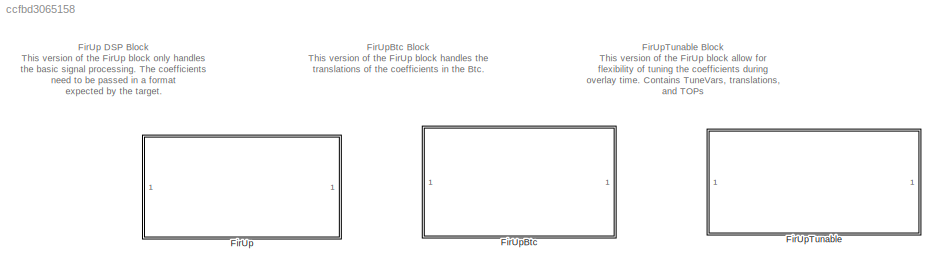
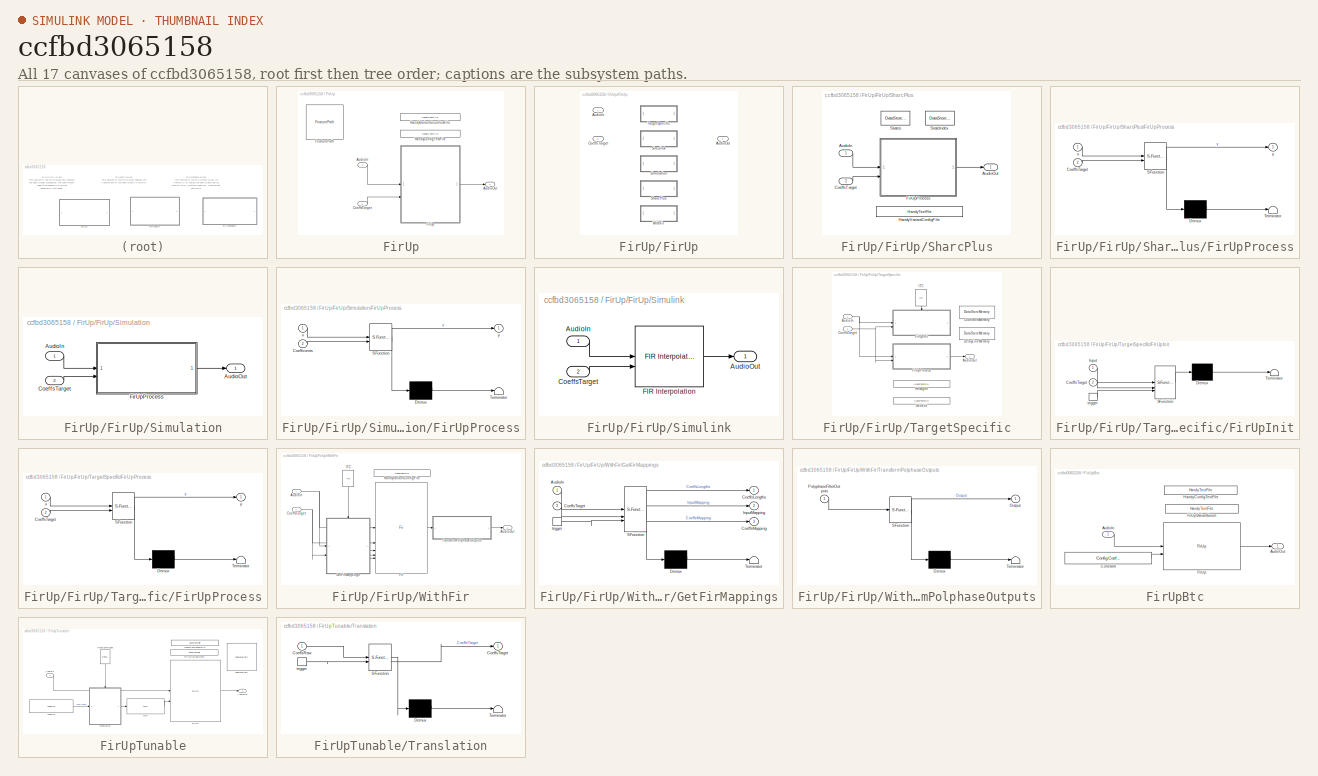
[diagram: thumbnail index - all 17 canvases of the model, root first then tree order]
MODEL slx_ccfbd3065158
KIND library
CONFIG AbsTol = auto
CONFIG EnableMultiTasking = off
CONFIG FixedStep = auto
CONFIG MaxStep = auto
CONFIG MinStep = auto
CONFIG RelTol = 1e-3
CONFIG SampleTimeConstraint = Unconstrained
CONFIG SolverName = VariableStepAuto
CONFIG StartTime = 0.0
CONFIG StopTime = 10.0
BLOCK [SubSystem] FirUp
BLOCK [Inport] FirUp/AudioIn
BLOCK [Outport] FirUp/AudioOut
BLOCK [Inport] FirUp/CoeffsTarget
  Port = 2
BLOCK [Reference] FirUp/FeaturePath  REF=FeaturePath/FeaturePath
  SourceBlock = FeaturePath/FeaturePath
  SourceProductName = Bose Talaria
  SourceType = Talaria Feature Path
BLOCK [SubSystem] FirUp/FirUp
  Variant = on
BLOCK [Inport] FirUp/FirUp/AudioIn
BLOCK [Outport] FirUp/FirUp/AudioOut
BLOCK [Inport] FirUp/FirUp/CoeffsTarget
  Port = 2
BLOCK [SubSystem] FirUp/FirUp/SharcPlus
  VariantControl = Config.Variant.StartsWith('SharcPlus')
BLOCK [Inport] FirUp/FirUp/SharcPlus/AudioIn
BLOCK [Outport] FirUp/FirUp/SharcPlus/AudioOut
BLOCK [Inport] FirUp/FirUp/SharcPlus/CoeffsTarget
  Port = 2
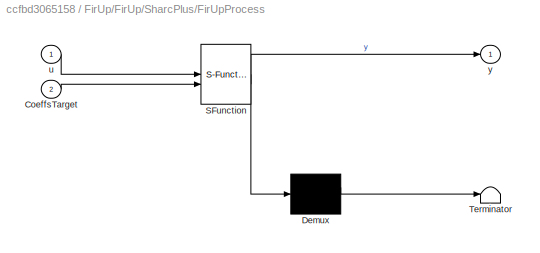
BLOCK [SubSystem] FirUp/FirUp/SharcPlus/FirUpProcess
  ErrorFcn = Stateflow.Translate.translate
  LibrarySourceBlock = simulink/User-Defined\nFunctions/MATLAB Function
  PermitHierarchicalResolution = ExplicitOnly
  SFBlockType = MATLAB Function
  TreatAsAtomicUnit = on
BLOCK [Demux] FirUp/FirUp/SharcPlus/FirUpProcess/ Demux 
  Outputs = 1
BLOCK [S-Function] FirUp/FirUp/SharcPlus/FirUpProcess/ SFunction 
  EnableBusSupport = off
  FunctionName = sf_sfun
  Parameters = UpFactor
  PortCounts = [2 2]
  SFcnIsStateOwnerBlock = off
  SFunctionDeploymentMode = off
  Tag = Stateflow S-Function 2
BLOCK [Terminator] FirUp/FirUp/SharcPlus/FirUpProcess/ Terminator 
BLOCK [Inport] FirUp/FirUp/SharcPlus/FirUpProcess/CoeffsTarget
  Port = 2
BLOCK [Inport] FirUp/FirUp/SharcPlus/FirUpProcess/u
BLOCK [Outport] FirUp/FirUp/SharcPlus/FirUpProcess/y
BLOCK [Reference] FirUp/FirUp/SharcPlus/HandyVariantConfigFile  REF=HandyTextFile/HandyTextFile
  SourceBlock = HandyTextFile/HandyTextFile
  SourceProductName = Bose Talaria
  SourceType = Talaria Handy Text File
BLOCK [DataStoreMemory] FirUp/FirUp/SharcPlus/StateIndex
  DataStoreName = StateIndex
  InitialValue = Config.VariantObj.DsmStateIndexInitValue
  OutDataTypeStr = int32
  ShowAdditionalParam = off
  SignalType = real
BLOCK [DataStoreMemory] FirUp/FirUp/SharcPlus/States
  DataStoreName = States
  InitialValue = Config.VariantObj.DsmStatesInitValue
  OutDataTypeStr = single
  ShowAdditionalParam = off
  SignalType = real
BLOCK [SubSystem] FirUp/FirUp/Simulation
  VariantControl = Config.Variant.StartsWith('Simulation')
BLOCK [Inport] FirUp/FirUp/Simulation/AudioIn
BLOCK [Outport] FirUp/FirUp/Simulation/AudioOut
BLOCK [Inport] FirUp/FirUp/Simulation/CoeffsTarget
  Port = 2
BLOCK [SubSystem] FirUp/FirUp/Simulation/FirUpProcess
  ErrorFcn = Stateflow.Translate.translate
  LibrarySourceBlock = simulink/User-Defined\nFunctions/MATLAB Function
  PermitHierarchicalResolution = ExplicitOnly
  SFBlockType = MATLAB Function
  TreatAsAtomicUnit = on
BLOCK [Demux] FirUp/FirUp/Simulation/FirUpProcess/ Demux 
  Outputs = 1
BLOCK [S-Function] FirUp/FirUp/Simulation/FirUpProcess/ SFunction 
  EnableBusSupport = off
  FunctionName = sf_sfun
  Parameters = UpFactor
  PortCounts = [2 2]
  SFcnIsStateOwnerBlock = off
  SFunctionDeploymentMode = off
  Tag = Stateflow S-Function 4
BLOCK [Terminator] FirUp/FirUp/Simulation/FirUpProcess/ Terminator 
BLOCK [Inport] FirUp/FirUp/Simulation/FirUpProcess/Coefficients
  Port = 2
BLOCK [Inport] FirUp/FirUp/Simulation/FirUpProcess/u
BLOCK [Outport] FirUp/FirUp/Simulation/FirUpProcess/y
BLOCK [SubSystem] FirUp/FirUp/Simulink
  VariantControl = (default)
BLOCK [Inport] FirUp/FirUp/Simulink/AudioIn
  OutDataTypeStr = single
BLOCK [Outport] FirUp/FirUp/Simulink/AudioOut
  OutDataTypeStr = single
BLOCK [Inport] FirUp/FirUp/Simulink/CoeffsTarget
  OutDataTypeStr = single
  Port = 2
BLOCK [Reference] FirUp/FirUp/Simulink/FIR Interpolation  REF=dspmlti4/FIR
Interpolation
  SourceBlock = dspmlti4/FIR\nInterpolation
  SourceType = FIR Interpolation
  UserDataPersistent = on
BLOCK [SubSystem] FirUp/FirUp/TargetSpecific
  VariantControl = Config.Variant.StartsWith('Generic') || Config.Variant.StartsWith('Hexagon')
BLOCK [Inport] FirUp/FirUp/TargetSpecific/AudioIn
BLOCK [Outport] FirUp/FirUp/TargetSpecific/AudioOut
BLOCK [DataStoreMemory] FirUp/FirUp/TargetSpecific/CodeWorkMemory
  DataStoreName = CodeWorkMemory
  InitialValue = Config.VariantObj.CodeWorkMemoryInitValue
  OutDataTypeStr = uint32
  ShowAdditionalParam = off
  SignalType = real
  WriteAfterWriteMsg = warning
BLOCK [Inport] FirUp/FirUp/TargetSpecific/CoeffsTarget
  Port = 2
BLOCK [DataStoreMemory] FirUp/FirUp/TargetSpecific/DelayLineMemory
  DataStoreName = DelayLineMemory
  InitialValue = Config.VariantObj.DelayLineMemoryInitValue
  OutDataTypeStr = single
  ShowAdditionalParam = off
  SignalType = real
  WriteAfterWriteMsg = warning
BLOCK [SubSystem] FirUp/FirUp/TargetSpecific/FirUpInit
  ErrorFcn = Stateflow.Translate.translate
  LibrarySourceBlock = simulink/User-Defined\nFunctions/MATLAB Function
  PermitHierarchicalResolution = ExplicitOnly
  SFBlockType = MATLAB Function
  TreatAsAtomicUnit = on
BLOCK [Demux] FirUp/FirUp/TargetSpecific/FirUpInit/ Demux 
  Outputs = 1
BLOCK [S-Function] FirUp/FirUp/TargetSpecific/FirUpInit/ SFunction 
  EnableBusSupport = off
  FunctionName = sf_sfun
  Parameters = UpFactor,VariantUint8
  PortCounts = [3 1]
  SFcnIsStateOwnerBlock = off
  SFunctionDeploymentMode = off
  Tag = Stateflow S-Function 3
BLOCK [Terminator] FirUp/FirUp/TargetSpecific/FirUpInit/ Terminator 
BLOCK [Inport] FirUp/FirUp/TargetSpecific/FirUpInit/CoeffsTarget
  Port = 2
BLOCK [Inport] FirUp/FirUp/TargetSpecific/FirUpInit/Input
BLOCK [TriggerPort] FirUp/FirUp/TargetSpecific/FirUpInit/trigger
  ShowOutputPort = on
  StatesWhenEnabling = held
  TriggerType = function-call
  VariantControl = (inherit)
BLOCK [SubSystem] FirUp/FirUp/TargetSpecific/FirUpProcess
  ErrorFcn = Stateflow.Translate.translate
  LibrarySourceBlock = simulink/User-Defined\nFunctions/MATLAB Function
  PermitHierarchicalResolution = ExplicitOnly
  SFBlockType = MATLAB Function
  TreatAsAtomicUnit = on
BLOCK [Demux] FirUp/FirUp/TargetSpecific/FirUpProcess/ Demux 
  Outputs = 1
BLOCK [S-Function] FirUp/FirUp/TargetSpecific/FirUpProcess/ SFunction 
  EnableBusSupport = off
  FunctionName = sf_sfun
  Parameters = UpFactor,VariantUint8
  PortCounts = [2 2]
  SFcnIsStateOwnerBlock = off
  SFunctionDeploymentMode = off
  Tag = Stateflow S-Function 1
BLOCK [Terminator] FirUp/FirUp/TargetSpecific/FirUpProcess/ Terminator 
BLOCK [Inport] FirUp/FirUp/TargetSpecific/FirUpProcess/CoeffsTarget
  Port = 2
BLOCK [Inport] FirUp/FirUp/TargetSpecific/FirUpProcess/u
BLOCK [Outport] FirUp/FirUp/TargetSpecific/FirUpProcess/y
BLOCK [Reference] FirUp/FirUp/TargetSpecific/Generic  REF=HandyTextFile/HandyTextFile
  SourceBlock = HandyTextFile/HandyTextFile
  SourceProductName = Bose Talaria
  SourceType = Talaria Handy Text File
BLOCK [Reference] FirUp/FirUp/TargetSpecific/Hexagon  REF=HandyTextFile/HandyTextFile
  SourceBlock = HandyTextFile/HandyTextFile
  SourceProductName = Bose Talaria
  SourceType = Talaria Handy Text File
BLOCK [Reference] FirUp/FirUp/TargetSpecific/ITC  REF=ITC/ITC
  NameLocation = right
  SourceBlock = ITC/ITC
  SourceProductName = Bose Talaria
  SourceType = Talaria Initialization Trigger Control
BLOCK [SubSystem] FirUp/FirUp/WithFir
  VariantControl = Config.Variant.StartsWith('WithFir')
BLOCK [Inport] FirUp/FirUp/WithFir/AudioIn
BLOCK [Outport] FirUp/FirUp/WithFir/AudioOut
BLOCK [Inport] FirUp/FirUp/WithFir/CoeffsTarget
  Port = 2
BLOCK [Reference] FirUp/FirUp/WithFir/Fir  REF=FirGeneric/Fir
  SourceBlock = FirGeneric/Fir
  SourceProductName = Bose Blocklib
  SourceType = Blocklib Fir
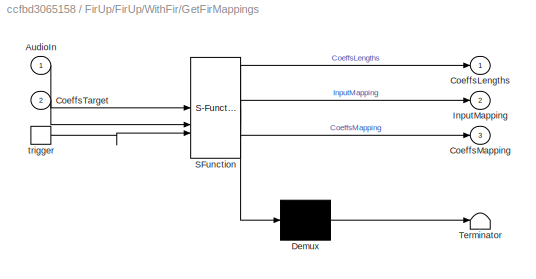
BLOCK [SubSystem] FirUp/FirUp/WithFir/GetFirMappings
  ErrorFcn = Stateflow.Translate.translate
  LibrarySourceBlock = simulink/User-Defined\nFunctions/MATLAB Function
  PermitHierarchicalResolution = ExplicitOnly
  SFBlockType = MATLAB Function
  TreatAsAtomicUnit = on
BLOCK [Demux] FirUp/FirUp/WithFir/GetFirMappings/ Demux 
  Outputs = 1
BLOCK [S-Function] FirUp/FirUp/WithFir/GetFirMappings/ SFunction 
  EnableBusSupport = off
  FunctionName = sf_sfun
  Parameters = UpFactor
  PortCounts = [3 4]
  SFcnIsStateOwnerBlock = off
  SFunctionDeploymentMode = off
  Tag = Stateflow S-Function 5
BLOCK [Terminator] FirUp/FirUp/WithFir/GetFirMappings/ Terminator 
BLOCK [Inport] FirUp/FirUp/WithFir/GetFirMappings/AudioIn
BLOCK [Outport] FirUp/FirUp/WithFir/GetFirMappings/CoeffsLengths
BLOCK [Outport] FirUp/FirUp/WithFir/GetFirMappings/CoeffsMapping
  Port = 3
BLOCK [Inport] FirUp/FirUp/WithFir/GetFirMappings/CoeffsTarget
  Port = 2
BLOCK [Outport] FirUp/FirUp/WithFir/GetFirMappings/InputMapping
  Port = 2
BLOCK [TriggerPort] FirUp/FirUp/WithFir/GetFirMappings/trigger
  ShowOutputPort = on
  StatesWhenEnabling = held
  TriggerType = function-call
  VariantControl = (inherit)
BLOCK [Reference] FirUp/FirUp/WithFir/HandyVariantConfigFile  REF=HandyTextFile/HandyTextFile
  SourceBlock = HandyTextFile/HandyTextFile
  SourceProductName = Bose Talaria
  SourceType = Talaria Handy Text File
BLOCK [Reference] FirUp/FirUp/WithFir/ITC  REF=ITC/ITC
  NameLocation = right
  SourceBlock = ITC/ITC
  SourceProductName = Bose Talaria
  SourceType = Talaria Initialization Trigger Control
BLOCK [SubSystem] FirUp/FirUp/WithFir/TransformPolphaseOutputs
  ErrorFcn = Stateflow.Translate.translate
  LibrarySourceBlock = simulink/User-Defined\nFunctions/MATLAB Function
  PermitHierarchicalResolution = ExplicitOnly
  SFBlockType = MATLAB Function
  TreatAsAtomicUnit = on
BLOCK [Demux] FirUp/FirUp/WithFir/TransformPolphaseOutputs/ Demux 
  Outputs = 1
BLOCK [S-Function] FirUp/FirUp/WithFir/TransformPolphaseOutputs/ SFunction 
  EnableBusSupport = off
  FunctionName = sf_sfun
  Parameters = UpFactor
  PortCounts = [1 2]
  SFcnIsStateOwnerBlock = off
  SFunctionDeploymentMode = off
  Tag = Stateflow S-Function 6
BLOCK [Terminator] FirUp/FirUp/WithFir/TransformPolphaseOutputs/ Terminator 
BLOCK [Outport] FirUp/FirUp/WithFir/TransformPolphaseOutputs/Output
BLOCK [Inport] FirUp/FirUp/WithFir/TransformPolphaseOutputs/PolyphaseFilterOutputs
BLOCK [Reference] FirUp/HandyConfigTextFile  REF=HandyTextFile/HandyTextFile
  SourceBlock = HandyTextFile/HandyTextFile
  SourceProductName = Bose Talaria
  SourceType = Talaria Handy Text File
BLOCK [Reference] FirUp/HandyVariantEnumTextFile  REF=HandyTextFile/HandyTextFile
  SourceBlock = HandyTextFile/HandyTextFile
  SourceProductName = Bose Talaria
  SourceType = Talaria Handy Text File
BLOCK [SubSystem] FirUpBtc
BLOCK [Inport] FirUpBtc/AudioIn
BLOCK [Outport] FirUpBtc/AudioOut
BLOCK [Constant] FirUpBtc/Constant
  OutDataTypeStr = single
  Value = Config.CoeffsTarget
  VectorParams1D = off
BLOCK [Reference] FirUpBtc/FirUp  REF=$bdroot/FirUp
  SourceBlock = $bdroot/FirUp
  SourceType = Blocklib FirUp
BLOCK [Reference] FirUpBtc/FirUpVariantEnum  REF=HandyTextFile/HandyTextFile
  SourceBlock = HandyTextFile/HandyTextFile
  SourceProductName = Bose Talaria
  SourceType = Talaria Handy Text File
BLOCK [Reference] FirUpBtc/HandyConfigTextFile  REF=HandyTextFile/HandyTextFile
  SourceBlock = HandyTextFile/HandyTextFile
  SourceProductName = Bose Talaria
  SourceType = Talaria Handy Text File
BLOCK [SubSystem] FirUpTunable
BLOCK [Inport] FirUpTunable/AudioIn
BLOCK [Outport] FirUpTunable/AudioOut
BLOCK [Reference] FirUpTunable/FeaturePath  REF=FeaturePath/FeaturePath
  SourceBlock = FeaturePath/FeaturePath
  SourceProductName = Bose Talaria
  SourceType = Talaria Feature Path
BLOCK [Reference] FirUpTunable/FirUp  REF=$bdroot/FirUp
  SourceBlock = $bdroot/FirUp
  SourceType = Blocklib FirUp
BLOCK [Reference] FirUpTunable/FirUpVariantEnum  REF=HandyTextFile/HandyTextFile
  SourceBlock = HandyTextFile/HandyTextFile
  SourceProductName = Bose Talaria
  SourceType = Talaria Handy Text File
BLOCK [Reference] FirUpTunable/HandyConfigTextFile  REF=HandyTextFile/HandyTextFile
  SourceBlock = HandyTextFile/HandyTextFile
  SourceProductName = Bose Talaria
  SourceType = Talaria Handy Text File
BLOCK [Reference] FirUpTunable/TOP  REF=TOP/TOP
  SourceBlock = TOP/TOP
  SourceProductName = Bose Talaria
  SourceType = Talaria Target Overlay Parameter
BLOCK [Reference] FirUpTunable/TranslateTrigger  REF=TuneVar/TranslateTrigger
  NameLocation = right
  SourceBlock = TuneVar/TranslateTrigger
  SourceProductName = Bose Talaria
  SourceType = Talaria Translate Trigger
BLOCK [SubSystem] FirUpTunable/Translation
  ErrorFcn = Stateflow.Translate.translate
  PermitHierarchicalResolution = ExplicitOnly
  SFBlockType = MATLAB Function
  TreatAsAtomicUnit = on
BLOCK [Demux] FirUpTunable/Translation/ Demux 
  Outputs = 1
BLOCK [S-Function] FirUpTunable/Translation/ SFunction 
  EnableBusSupport = off
  FunctionName = sf_sfun
  Parameters = UpFactor,VariantStr,WithFirVariantStr
  PortCounts = [2 2]
  SFcnIsStateOwnerBlock = off
  SFunctionDeploymentMode = off
  Tag = Stateflow S-Function 8
BLOCK [Terminator] FirUpTunable/Translation/ Terminator 
BLOCK [Inport] FirUpTunable/Translation/CoeffsRaw
BLOCK [Outport] FirUpTunable/Translation/CoeffsTarget
  VectorParamsAs1DForOutWhenUnconnected = off
BLOCK [TriggerPort] FirUpTunable/Translation/trigger
  ShowOutputPort = on
  StatesWhenEnabling = held
  TriggerType = function-call
  VariantControl = Variant
BLOCK [Reference] FirUpTunable/TuneVar  REF=TuneVar/TuneVar
  SourceBlock = TuneVar/TuneVar
  SourceProductName = Bose Talaria
  SourceType = Talaria Tune Variable
ANNOTATION (root): FirUp DSP Block This version of the FirUp block only handles the basic signal processing. The coefficients need to be passed in a format expected by the target.
ANNOTATION (root): FirUpBtc Block This version of the FirUp block handles the translations of the coefficients in the Btc.
ANNOTATION (root): FirUpTunable Block This version of the FirUp block allow for flexibility of tuning the coefficients during overlay time. Contains TuneVars, translations, and TOPs
LINE FirUp/AudioIn:1 -> FirUp/FirUp:1
LINE FirUp/CoeffsTarget:1 -> FirUp/FirUp:2
LINE FirUp/FirUp/SharcPlus/AudioIn:1 -> FirUp/FirUp/SharcPlus/FirUpProcess:1
LINE FirUp/FirUp/SharcPlus/CoeffsTarget:1 -> FirUp/FirUp/SharcPlus/FirUpProcess:2
LINE FirUp/FirUp/SharcPlus/FirUpProcess:1 -> FirUp/FirUp/SharcPlus/AudioOut:1
LINE FirUp/FirUp/Simulation/AudioIn:1 -> FirUp/FirUp/Simulation/FirUpProcess:1
LINE FirUp/FirUp/Simulation/CoeffsTarget:1 -> FirUp/FirUp/Simulation/FirUpProcess:2
LINE FirUp/FirUp/Simulation/FirUpProcess:1 -> FirUp/FirUp/Simulation/AudioOut:1
LINE FirUp/FirUp/Simulink/AudioIn:1 -> FirUp/FirUp/Simulink/FIR Interpolation:1
LINE FirUp/FirUp/Simulink/CoeffsTarget:1 -> FirUp/FirUp/Simulink/FIR Interpolation:2
LINE FirUp/FirUp/Simulink/FIR Interpolation:1 -> FirUp/FirUp/Simulink/AudioOut:1
NET FirUp/FirUp/TargetSpecific/AudioIn:1 -> FirUp/FirUp/TargetSpecific/FirUpInit:1, FirUp/FirUp/TargetSpecific/FirUpProcess:1
NET FirUp/FirUp/TargetSpecific/CoeffsTarget:1 -> FirUp/FirUp/TargetSpecific/FirUpInit:2, FirUp/FirUp/TargetSpecific/FirUpProcess:2
LINE FirUp/FirUp/TargetSpecific/FirUpProcess:1 -> FirUp/FirUp/TargetSpecific/AudioOut:1
LINE FirUp/FirUp/TargetSpecific/ITC:1 -> FirUp/FirUp/TargetSpecific/FirUpInit:trigger
NET FirUp/FirUp/WithFir/AudioIn:1 -> FirUp/FirUp/WithFir/Fir:1, FirUp/FirUp/WithFir/GetFirMappings:1
NET FirUp/FirUp/WithFir/CoeffsTarget:1 -> FirUp/FirUp/WithFir/Fir:2, FirUp/FirUp/WithFir/GetFirMappings:2
LINE FirUp/FirUp/WithFir/Fir:1 -> FirUp/FirUp/WithFir/TransformPolphaseOutputs:1
LINE FirUp/FirUp/WithFir/GetFirMappings:1 -> FirUp/FirUp/WithFir/Fir:3
LINE FirUp/FirUp/WithFir/GetFirMappings:2 -> FirUp/FirUp/WithFir/Fir:4
LINE FirUp/FirUp/WithFir/GetFirMappings:3 -> FirUp/FirUp/WithFir/Fir:5
LINE FirUp/FirUp/WithFir/ITC:1 -> FirUp/FirUp/WithFir/GetFirMappings:trigger
LINE FirUp/FirUp/WithFir/TransformPolphaseOutputs:1 -> FirUp/FirUp/WithFir/AudioOut:1
LINE FirUp/FirUp:1 -> FirUp/AudioOut:1
LINE FirUpBtc/AudioIn:1 -> FirUpBtc/FirUp:1
LINE FirUpBtc/Constant:1 -> FirUpBtc/FirUp:2
LINE FirUpBtc/FirUp:1 -> FirUpBtc/AudioOut:1
LINE FirUpTunable/AudioIn:1 -> FirUpTunable/FirUp:1
LINE FirUpTunable/FirUp:1 -> FirUpTunable/AudioOut:1
LINE FirUpTunable/TOP:1 -> FirUpTunable/FirUp:2
LINE FirUpTunable/TranslateTrigger:1 -> FirUpTunable/Translation:trigger
LINE FirUpTunable/Translation:1 -> FirUpTunable/TOP:1
LINE FirUpTunable/TuneVar:1 -> FirUpTunable/Translation:1
note: NET lines group one-source signal fan-out (src -> all destinations, sorted); 1:1 wires keep LINE
CHART FirUp/FirUp/TargetSpecific/FirUpProcess states=1 transitions=1
  STATE_LABEL 'eML_blk_kernel()'
  STATE_LABEL "SCRIPT:\nfunction y = FirUpProcess(u, UpFactor, VariantUint8, CoeffsTarget)\n% Upsample the input signal by an integer-valued factor, then apply an \n% FIR filter. \n\nglobal DelayLineMemory;\nglobal CodeWorkMemory;\nVariantSelect = char(VariantUint8);\n\nif(coder.target('MATLAB') || coder.target('Sfun')) \n    y = FirUpProcessSim(u, CoeffsTarget, UpFactor, VariantSelect);\nelse\n    switch(VariantSelect)\n   ...<+724ch>"
CHART FirUp/FirUp/SharcPlus/FirUpProcess states=1 transitions=1
  STATE_LABEL 'eML_blk_kernel()'
  STATE_LABEL 'SCRIPT:\nfunction y = FirUpProcess(u, CoeffsTarget, UpFactor)\n% Upsample the input signal by an integer-valued factor, then apply an \n% FIR filter. \nglobal States;\nglobal StateIndex;\n\nif(coder.target(\'MATLAB\') || coder.target(\'Sfun\')) \n    y = FirUpProcessSim(u, CoeffsTarget, UpFactor, "SharcPlus");\nelse\n    [FrameSize, NumChannels] = size(u);\n    ActiveCoeffSet = zeros(NumChannels,1);\n    Polyphas...<+585ch>'
CHART FirUp/FirUp/TargetSpecific/FirUpInit states=1 transitions=1
  STATE_LABEL 'eML_blk_kernel()'
  STATE_LABEL "SCRIPT:\nfunction FirUpInit(Input, UpFactor, VariantUint8, CoeffsTarget)\n\nglobal CodeWorkMemory;\n\nVariantSelect = char(VariantUint8);\n[FrameSize, NumChannels] = size(Input);\nFilterLength = numel(CoeffsTarget);\nif(coder.target('MATLAB') || coder.target('Sfun')) \n    return;\nelse\n    switch(VariantSelect)\n        case('Generic')\n            y = firup_generic_init(single(CoeffsTarget), uint32(FrameSiz...<+1210ch>"
CHART FirUp/FirUp/Simulation/FirUpProcess states=1 transitions=1
  STATE_LABEL 'eML_blk_kernel()'
  STATE_LABEL 'SCRIPT:\nfunction y = FirUpProcess(u, UpFactor, Coefficients)\n% Upsample the input signal by an integer-valued factor, then apply an \n% FIR filter. \ny = FirUpProcessSim(u, Coefficients, UpFactor);\nend\n\n'
CHART FirUp/FirUp/WithFir/GetFirMappings states=1 transitions=1
  STATE_LABEL 'eML_blk_kernel()'
  STATE_LABEL 'SCRIPT:\nfunction [CoeffsLengths, InputMapping, CoeffsMapping] = GetFirMappings(AudioIn, CoeffsTarget, UpFactor)\n\n[~, NumChannels] = size(AudioIn);\nNumOutputs = UpFactor*NumChannels;\n\n% Coefficients are equally divided up into [UpFactor] number of coefficient\n% sets. \n% CoeffsLengths = uint32(ceil(ones(1,UpFactor).*(numel(CoeffsTarget)/UpFactor)));\nCoeffsLengths = uint32(ceil(ones(1,NumOutputs).*(n...<+461ch>'
CHART FirUp/FirUp/WithFir/TransformPolphaseOutputs states=1 transitions=1
  STATE_LABEL 'eML_blk_kernel()'
  STATE_LABEL "SCRIPT:\nfunction Output = TransformPolyphaseOutputs(PolyphaseFilterOutputs, UpFactor)\n% Converts polyphase filter outputs into standard filter outputs\n\n% Instantiate output array\n[FrameSizeIn, PolyphaseChannels] = size(PolyphaseFilterOutputs);\nNumChannels = PolyphaseChannels/UpFactor;\nOutput = zeros(FrameSizeIn*UpFactor, PolyphaseChannels/UpFactor,'single');\nfor ch = 1: NumChannels\n    % Commutati...<+171ch>"
CHART FirUpTunable/Translation states=1 transitions=1
  STATE_LABEL 'eML_blk_kernel()'
  STATE_LABEL 'SCRIPT:\nfunction CoeffsTarget  = fcn(CoeffsRaw, UpFactor, VariantStr, WithFirVariantStr)\n%#codegen\n\n% ----- To access TuneVar maximum size, current size, and current value:\n%   Note: TuneVar signals arrive with exposed variable size information.\n%         The expressions below illustrate for the "Tune1" input argument.\n%\n%   size(Tune1.Value) : the maximum possible size of the Tune1 variable\n%\n%  ...<+1161ch>'
CHART  states=0 transitions=0
CHART  states=0 transitions=0
CHART  states=0 transitions=0
CHART  states=0 transitions=0
CHART  states=0 transitions=0
CHART  states=0 transitions=0
CHART  states=0 transitions=0
